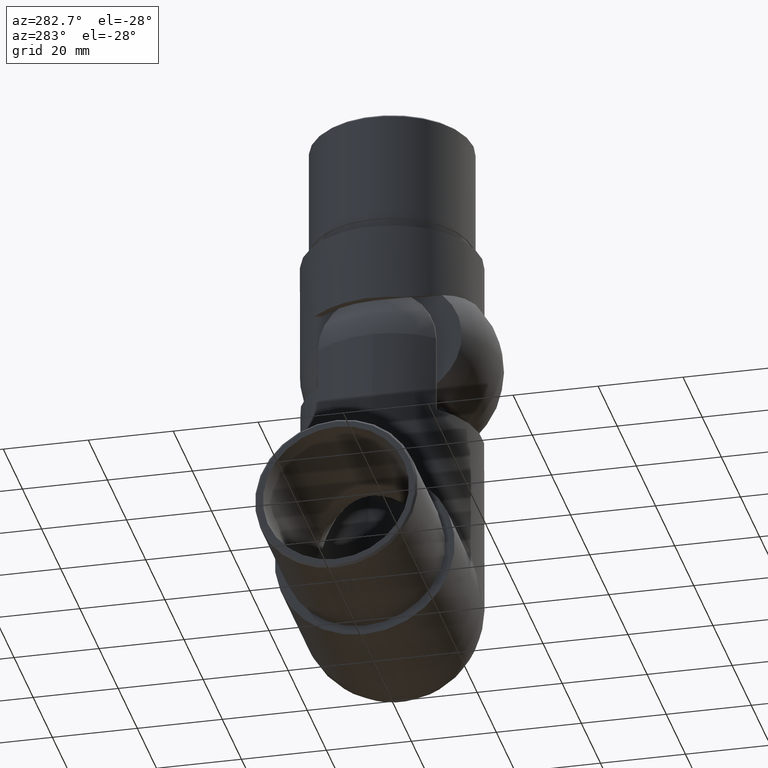
[diagram: clean part render]
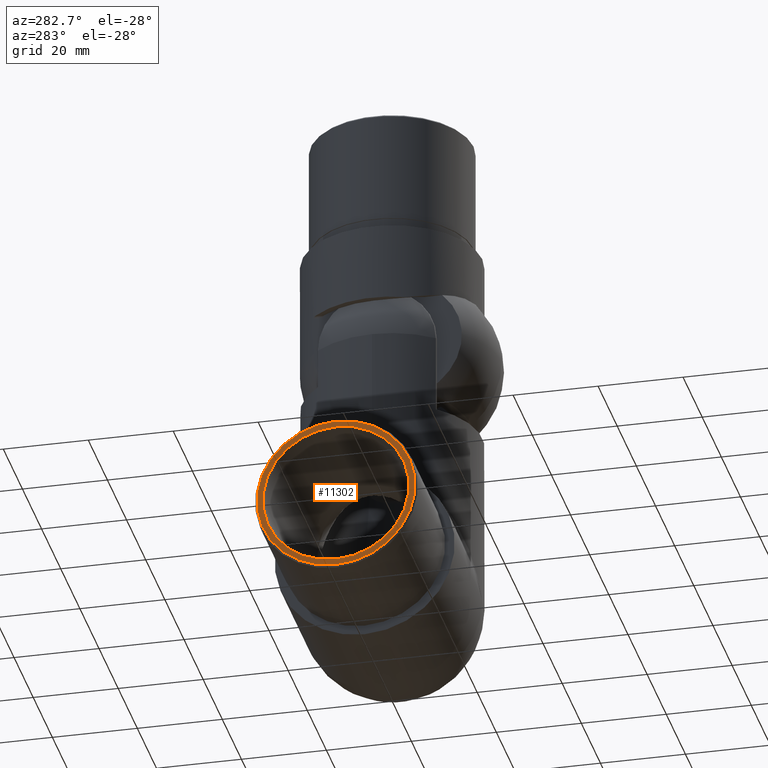
[diagram: same view with one face highlighted and labeled with its STEP entity id]
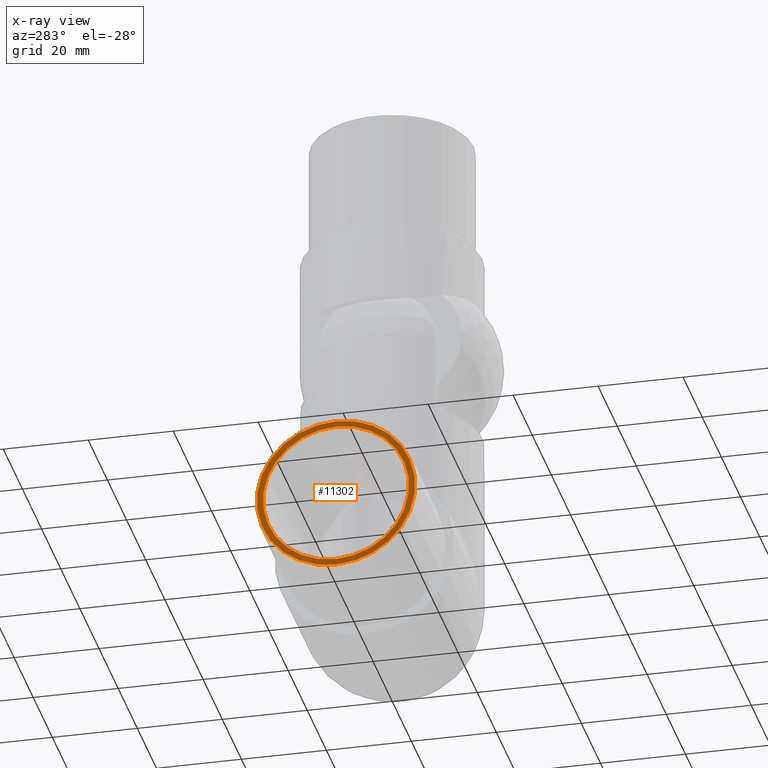
[diagram: x-ray of the same camera — body ghosted, the highlighted face saturated]
A machine part, auxiliary view. The second image highlights one B-rep face of the part: STEP entity #11302.
The next image is the same camera in x-ray: the body ghosted, the highlighted face saturated — about 0% of this face is hidden behind the body in this view.
In plain terms, the highlighted planar face has unit normal (-1, 0, 0).
Its self-contained STEP definition (entity closure, byte-faithful):
#234 = VERTEX_POINT ( 'NONE', #1945 ) ;
#500 = AXIS2_PLACEMENT_3D ( 'NONE', #1012, #4482, #19894 ) ;
#1012 = CARTESIAN_POINT ( 'NONE',  ( -58.79999999999999005, 0.000000000000000000, -1.690012582823346938E-15 ) ) ;
#1435 = DIRECTION ( 'NONE',  ( -1.000000000000000000, 0.000000000000000000, 6.123233995736766036E-17 ) ) ;
#1501 = VERTEX_POINT ( 'NONE', #16839 ) ;
#1512 = CARTESIAN_POINT ( 'NONE',  ( -58.79999999999999005, 0.000000000000000000, 17.20000000000000284 ) ) ;
#1526 = CARTESIAN_POINT ( 'NONE',  ( -58.79999999999999005, 0.000000000000000000, -1.690012582823346938E-15 ) ) ;
#1838 = CARTESIAN_POINT ( 'NONE',  ( -58.79999999999999005, 0.000000000000000000, -1.690012582823346938E-15 ) ) ;
#1945 = CARTESIAN_POINT ( 'NONE',  ( -58.79999999999999005, 2.106392494533447388E-15, -17.20000000000000284 ) ) ;
#4242 = EDGE_CURVE ( 'NONE', #234, #15269, #11727, .T. ) ;
#4482 = DIRECTION ( 'NONE',  ( -1.000000000000000000, 0.000000000000000000, 6.123233995736766036E-17 ) ) ;
#4901 = CIRCLE ( 'NONE', #7457, 18.65000000000004121 ) ;
#4987 = DIRECTION ( 'NONE',  ( 0.000000000000000000, 0.000000000000000000, 1.000000000000000000 ) ) ;
#5343 = CARTESIAN_POINT ( 'NONE',  ( -58.79999999999999005, 0.000000000000000000, -1.690012582823346938E-15 ) ) ;
#6254 = EDGE_CURVE ( 'NONE', #15269, #234, #17332, .T. ) ;
#7347 = CARTESIAN_POINT ( 'NONE',  ( -58.79999999999999005, 2.314582450388500374E-15, 18.65000000000004121 ) ) ;
#7457 = AXIS2_PLACEMENT_3D ( 'NONE', #1838, #8613, #10189 ) ;
#7602 = FACE_OUTER_BOUND ( 'NONE', #19552, .T. ) ;
#8613 = DIRECTION ( 'NONE',  ( -1.000000000000000000, 0.000000000000000000, 6.123233995736766036E-17 ) ) ;
#8726 = DIRECTION ( 'NONE',  ( 0.000000000000000000, 0.000000000000000000, 1.000000000000000000 ) ) ;
#10082 = EDGE_CURVE ( 'NONE', #1501, #10273, #20693, .T. ) ;
#10189 = DIRECTION ( 'NONE',  ( 0.000000000000000000, 0.000000000000000000, 1.000000000000000000 ) ) ;
#10273 = VERTEX_POINT ( 'NONE', #7347 ) ;
#10516 = CARTESIAN_POINT ( 'NONE',  ( -58.79999999999999005, 0.000000000000000000, -1.690012582823346938E-15 ) ) ;
#11302 = ADVANCED_FACE ( 'NONE', ( #7602, #20977 ), #15203, .T. ) ;
#11727 = CIRCLE ( 'NONE', #12025, 17.20000000000000284 ) ;
#12025 = AXIS2_PLACEMENT_3D ( 'NONE', #5343, #15656, #8726 ) ;
#13134 = ORIENTED_EDGE ( 'NONE', *, *, #14428, .T. ) ;
#13374 = DIRECTION ( 'NONE',  ( 6.123233995736766036E-17, 0.000000000000000000, 1.000000000000000000 ) ) ;
#13583 = ORIENTED_EDGE ( 'NONE', *, *, #10082, .T. ) ;
#14428 = EDGE_CURVE ( 'NONE', #10273, #1501, #4901, .T. ) ;
#15203 = PLANE ( 'NONE',  #20875 ) ;
#15269 = VERTEX_POINT ( 'NONE', #1512 ) ;
#15656 = DIRECTION ( 'NONE',  ( -1.000000000000000000, 0.000000000000000000, 6.123233995736766036E-17 ) ) ;
#16839 = CARTESIAN_POINT ( 'NONE',  ( -58.79999999999999005, 0.000000000000000000, -18.65000000000004121 ) ) ;
#17332 = CIRCLE ( 'NONE', #500, 17.20000000000000284 ) ;
#18723 = AXIS2_PLACEMENT_3D ( 'NONE', #1526, #20358, #4987 ) ;
#18845 = ORIENTED_EDGE ( 'NONE', *, *, #4242, .F. ) ;
#18983 = EDGE_LOOP ( 'NONE', ( #19012, #18845 ) ) ;
#19012 = ORIENTED_EDGE ( 'NONE', *, *, #6254, .F. ) ;
#19552 = EDGE_LOOP ( 'NONE', ( #13583, #13134 ) ) ;
#19894 = DIRECTION ( 'NONE',  ( 0.000000000000000000, 0.000000000000000000, 1.000000000000000000 ) ) ;
#20358 = DIRECTION ( 'NONE',  ( -1.000000000000000000, 0.000000000000000000, 6.123233995736766036E-17 ) ) ;
#20693 = CIRCLE ( 'NONE', #18723, 18.65000000000004121 ) ;
#20875 = AXIS2_PLACEMENT_3D ( 'NONE', #10516, #1435, #13374 ) ;
#20977 = FACE_BOUND ( 'NONE', #18983, .T. ) ;